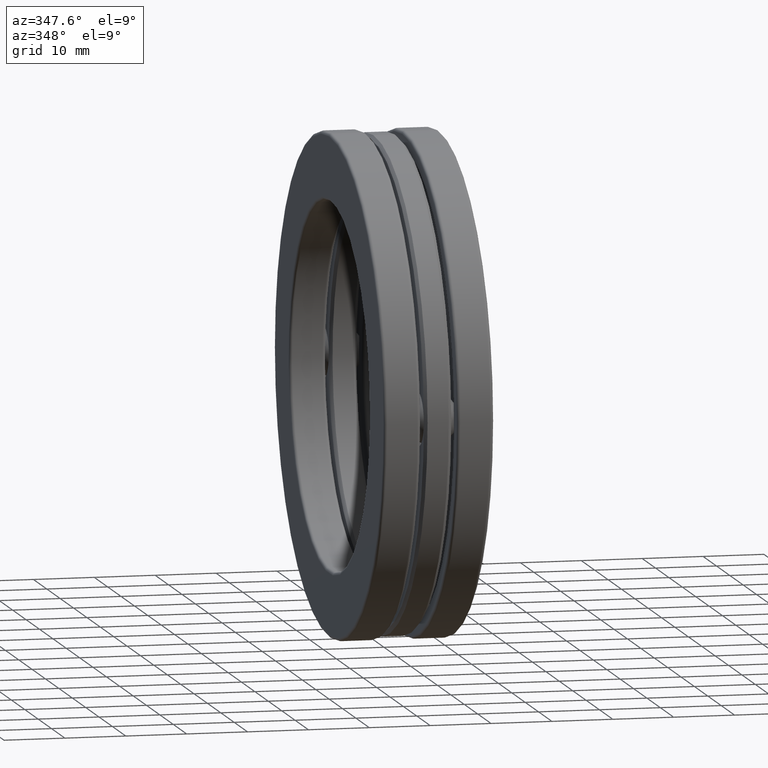
[diagram: clean part render]
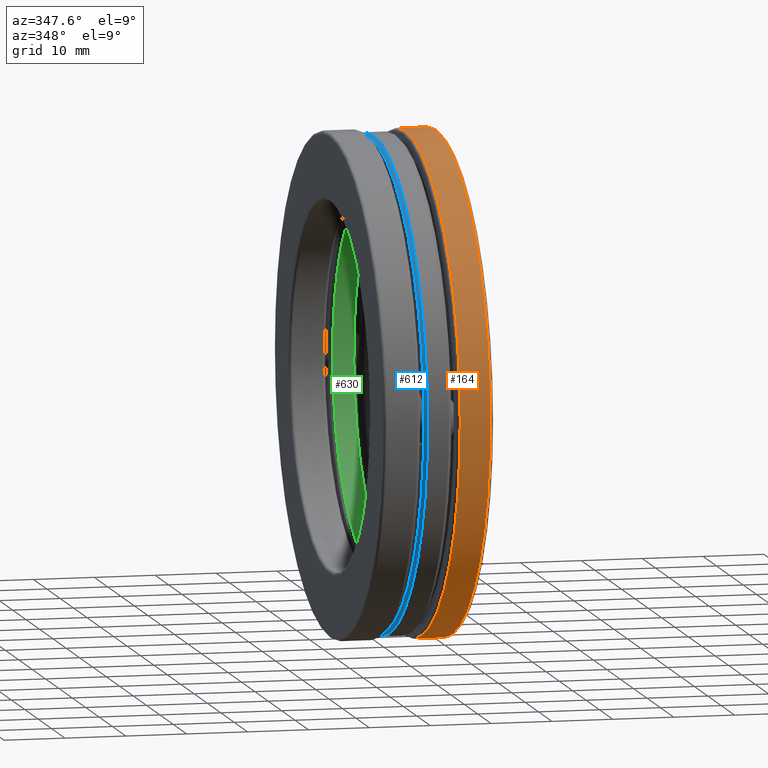
[diagram: same view with three faces highlighted in distinct colors, each labeled with its STEP entity id]
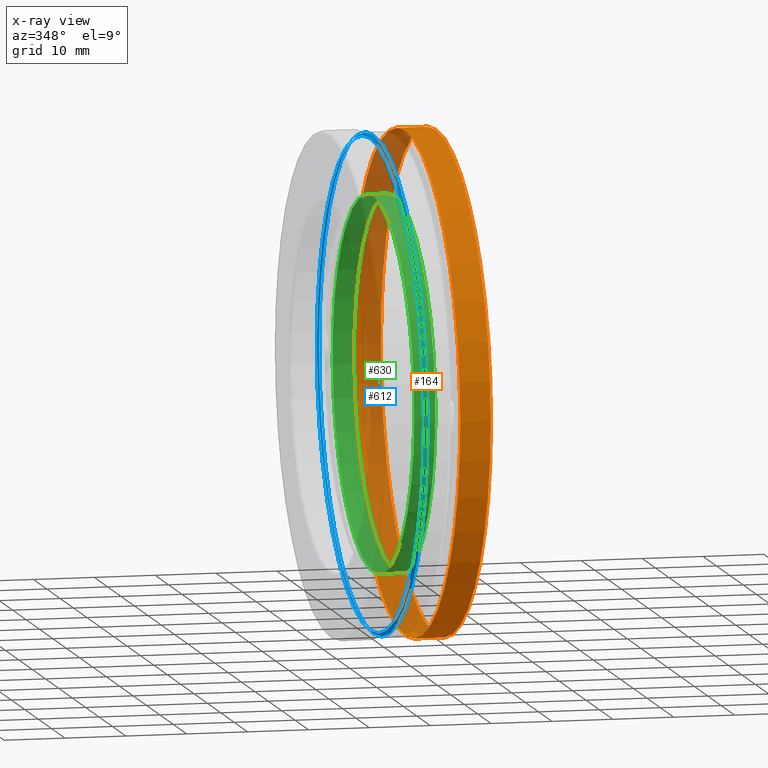
[diagram: x-ray of the same camera — body ghosted, the three highlighted faces saturated]
A machine part, auxiliary view with three faces highlighted in distinct colors.
The next image is the same camera in x-ray (body ghosted, the three faces saturated) — at least one of them is partly hidden behind the body in this view.
Their STEP definitions:

[orange] entity #164 — the highlighted cylindrical surface (bore or boss wall) has radius 40.9956 mm, axis along (-1, -0, -0).
#2 = FACE_OUTER_BOUND ( 'NONE', #351, .T. ) ;
#13 = VERTEX_POINT ( 'NONE', #737 ) ;
#82 = CYLINDRICAL_SURFACE ( 'NONE', #569, 1.614000000000000300 ) ;
#122 = AXIS2_PLACEMENT_3D ( 'NONE', #297, #515, #224 ) ;
#134 = DIRECTION ( 'NONE',  ( -1.000000000000000000, -0.0000000000000000000, -0.0000000000000000000 ) ) ;
#164 = ADVANCED_FACE ( 'NONE', ( #201, #2 ), #82, .T. ) ;
#201 = FACE_OUTER_BOUND ( 'NONE', #932, .T. ) ;
#224 = DIRECTION ( 'NONE',  ( 0.0000000000000000000, 0.0000000000000000000, 1.000000000000000000 ) ) ;
#242 = AXIS2_PLACEMENT_3D ( 'NONE', #602, #305, #396 ) ;
#245 = CIRCLE ( 'NONE', #242, 1.614000000000000300 ) ;
#258 = CIRCLE ( 'NONE', #122, 1.614000000000000300 ) ;
#297 = CARTESIAN_POINT ( 'NONE',  ( 0.3345000000000006300, 0.0000000000000000000, 0.0000000000000000000 ) ) ;
#305 = DIRECTION ( 'NONE',  ( -1.000000000000000000, -0.0000000000000000000, -0.0000000000000000000 ) ) ;
#351 = EDGE_LOOP ( 'NONE', ( #704 ) ) ;
#396 = DIRECTION ( 'NONE',  ( 0.0000000000000000000, 0.0000000000000000000, 1.000000000000000000 ) ) ;
#434 = EDGE_CURVE ( 'NONE', #13, #13, #258, .T. ) ;
#515 = DIRECTION ( 'NONE',  ( -1.000000000000000000, -0.0000000000000000000, -0.0000000000000000000 ) ) ;
#529 = ORIENTED_EDGE ( 'NONE', *, *, #629, .F. ) ;
#569 = AXIS2_PLACEMENT_3D ( 'NONE', #989, #134, #672 ) ;
#602 = CARTESIAN_POINT ( 'NONE',  ( 0.1381690300000004700, 0.0000000000000000000, 0.0000000000000000000 ) ) ;
#629 = EDGE_CURVE ( 'NONE', #831, #831, #245, .T. ) ;
#672 = DIRECTION ( 'NONE',  ( 0.0000000000000000000, 0.0000000000000000000, 1.000000000000000000 ) ) ;
#704 = ORIENTED_EDGE ( 'NONE', *, *, #434, .T. ) ;
#731 = CARTESIAN_POINT ( 'NONE',  ( 0.1381690300000004700, 0.0000000000000000000, 1.614000000000000300 ) ) ;
#737 = CARTESIAN_POINT ( 'NONE',  ( 0.3345000000000006300, 0.0000000000000000000, 1.614000000000000300 ) ) ;
#831 = VERTEX_POINT ( 'NONE', #731 ) ;
#932 = EDGE_LOOP ( 'NONE', ( #529 ) ) ;
#989 = CARTESIAN_POINT ( 'NONE',  ( 0.0000000000000000000, 0.0000000000000000000, 0.0000000000000000000 ) ) ;

[blue] entity #612 — the highlighted conical surface has half-angle 45 deg.
#9 = EDGE_LOOP ( 'NONE', ( #331, #694, #857, #805 ) ) ;
#14 = FACE_OUTER_BOUND ( 'NONE', #476, .T. ) ;
#30 = CARTESIAN_POINT ( 'NONE',  ( -0.08862499999999999500, 0.0000000000000000000, 0.0000000000000000000 ) ) ;
#49 = CIRCLE ( 'NONE', #149, 1.593999999999999600 ) ;
#50 = VERTEX_POINT ( 'NONE', #395 ) ;
#55 = AXIS2_PLACEMENT_3D ( 'NONE', #313, #535, #613 ) ;
#89 = AXIS2_PLACEMENT_3D ( 'NONE', #120, #452, #772 ) ;
#95 = VERTEX_POINT ( 'NONE', #801 ) ;
#120 = CARTESIAN_POINT ( 'NONE',  ( -0.08862499999999999500, 0.0000000000000000000, 0.0000000000000000000 ) ) ;
#121 = DIRECTION ( 'NONE',  ( 0.0000000000000000000, 0.0000000000000000000, 1.000000000000000000 ) ) ;
#149 = AXIS2_PLACEMENT_3D ( 'NONE', #289, #910, #999 ) ;
#159 = DIRECTION ( 'NONE',  ( 0.0000000000000000000, 0.0000000000000000000, 1.000000000000000000 ) ) ;
#174 = EDGE_CURVE ( 'NONE', #50, #95, #764, .T. ) ;
#227 = DIRECTION ( 'NONE',  ( -1.000000000000000000, -0.0000000000000000000, -0.0000000000000000000 ) ) ;
#237 = VERTEX_POINT ( 'NONE', #369 ) ;
#256 = CARTESIAN_POINT ( 'NONE',  ( -0.08862499999999999500, 1.573999999999999600, 0.0000000000000000000 ) ) ;
#289 = CARTESIAN_POINT ( 'NONE',  ( -0.06862500000000001900, 0.0000000000000000000, 0.0000000000000000000 ) ) ;
#290 = EDGE_CURVE ( 'NONE', #966, #589, #846, .T. ) ;
#294 = EDGE_CURVE ( 'NONE', #589, #50, #909, .T. ) ;
#313 = CARTESIAN_POINT ( 'NONE',  ( -0.08862499999999999500, 0.0000000000000000000, 0.0000000000000000000 ) ) ;
#326 = CIRCLE ( 'NONE', #342, 1.573999999999999600 ) ;
#331 = ORIENTED_EDGE ( 'NONE', *, *, #290, .F. ) ;
#342 = AXIS2_PLACEMENT_3D ( 'NONE', #402, #227, #854 ) ;
#368 = FACE_BOUND ( 'NONE', #9, .T. ) ;
#369 = CARTESIAN_POINT ( 'NONE',  ( -0.06862500000000001900, 0.0000000000000000000, 1.593999999999999600 ) ) ;
#386 = DIRECTION ( 'NONE',  ( -1.000000000000000000, -0.0000000000000000000, -0.0000000000000000000 ) ) ;
#395 = CARTESIAN_POINT ( 'NONE',  ( -0.08862499999999996800, -1.574000000000000300, 3.807592714452448000E-019 ) ) ;
#402 = CARTESIAN_POINT ( 'NONE',  ( -0.08862499999999999500, 0.0000000000000000000, 0.0000000000000000000 ) ) ;
#417 = EDGE_CURVE ( 'NONE', #237, #237, #49, .T. ) ;
#452 = DIRECTION ( 'NONE',  ( -1.000000000000000000, -0.0000000000000000000, -0.0000000000000000000 ) ) ;
#476 = EDGE_LOOP ( 'NONE', ( #706 ) ) ;
#535 = DIRECTION ( 'NONE',  ( 1.000000000000000000, 0.0000000000000000000, 0.0000000000000000000 ) ) ;
#547 = EDGE_CURVE ( 'NONE', #95, #966, #326, .T. ) ;
#589 = VERTEX_POINT ( 'NONE', #780 ) ;
#605 = AXIS2_PLACEMENT_3D ( 'NONE', #988, #386, #159 ) ;
#612 = ADVANCED_FACE ( 'NONE', ( #14, #368 ), #1020, .T. ) ;
#613 = DIRECTION ( 'NONE',  ( 0.0000000000000000000, 0.0000000000000000000, -1.000000000000000000 ) ) ;
#694 = ORIENTED_EDGE ( 'NONE', *, *, #547, .F. ) ;
#700 = AXIS2_PLACEMENT_3D ( 'NONE', #30, #744, #121 ) ;
#706 = ORIENTED_EDGE ( 'NONE', *, *, #417, .T. ) ;
#744 = DIRECTION ( 'NONE',  ( -1.000000000000000000, -0.0000000000000000000, -0.0000000000000000000 ) ) ;
#764 = CIRCLE ( 'NONE', #605, 1.573999999999999600 ) ;
#772 = DIRECTION ( 'NONE',  ( 0.0000000000000000000, 0.0000000000000000000, 1.000000000000000000 ) ) ;
#780 = CARTESIAN_POINT ( 'NONE',  ( -0.08862499999999999500, -5.495591627339089700E-015, -1.573999999999999600 ) ) ;
#801 = CARTESIAN_POINT ( 'NONE',  ( -0.08862499999999996800, 1.648690070339581000E-014, 1.574000000000000300 ) ) ;
#805 = ORIENTED_EDGE ( 'NONE', *, *, #294, .F. ) ;
#846 = CIRCLE ( 'NONE', #89, 1.573999999999999600 ) ;
#854 = DIRECTION ( 'NONE',  ( 0.0000000000000000000, 0.0000000000000000000, 1.000000000000000000 ) ) ;
#857 = ORIENTED_EDGE ( 'NONE', *, *, #174, .F. ) ;
#909 = CIRCLE ( 'NONE', #700, 1.573999999999999600 ) ;
#910 = DIRECTION ( 'NONE',  ( -1.000000000000000000, -0.0000000000000000000, -0.0000000000000000000 ) ) ;
#966 = VERTEX_POINT ( 'NONE', #256 ) ;
#988 = CARTESIAN_POINT ( 'NONE',  ( -0.08862499999999999500, 0.0000000000000000000, 0.0000000000000000000 ) ) ;
#999 = DIRECTION ( 'NONE',  ( 0.0000000000000000000, 0.0000000000000000000, 1.000000000000000000 ) ) ;
#1020 = CONICAL_SURFACE ( 'NONE', #55, 1.573999999999999600, 0.7853981633974502800 ) ;

[green] entity #630 — the highlighted cylindrical surface (bore or boss wall) has radius 30.5054 mm, axis along (-1, -0, -0).
#92 = AXIS2_PLACEMENT_3D ( 'NONE', #894, #490, #116 ) ;
#114 = EDGE_CURVE ( 'NONE', #487, #487, #370, .T. ) ;
#116 = DIRECTION ( 'NONE',  ( 0.0000000000000000000, 0.0000000000000000000, 1.000000000000000000 ) ) ;
#202 = AXIS2_PLACEMENT_3D ( 'NONE', #371, #839, #283 ) ;
#277 = CARTESIAN_POINT ( 'NONE',  ( 0.06862500000000004700, 0.0000000000000000000, 1.201000000000000100 ) ) ;
#283 = DIRECTION ( 'NONE',  ( 0.0000000000000000000, 0.0000000000000000000, 1.000000000000000000 ) ) ;
#300 = CARTESIAN_POINT ( 'NONE',  ( 0.0000000000000000000, 0.0000000000000000000, 0.0000000000000000000 ) ) ;
#364 = VERTEX_POINT ( 'NONE', #277 ) ;
#370 = CIRCLE ( 'NONE', #92, 1.201000000000000100 ) ;
#371 = CARTESIAN_POINT ( 'NONE',  ( 0.06862500000000004700, 0.0000000000000000000, 0.0000000000000000000 ) ) ;
#443 = EDGE_LOOP ( 'NONE', ( #580 ) ) ;
#454 = EDGE_CURVE ( 'NONE', #364, #364, #740, .T. ) ;
#484 = FACE_OUTER_BOUND ( 'NONE', #799, .T. ) ;
#487 = VERTEX_POINT ( 'NONE', #574 ) ;
#490 = DIRECTION ( 'NONE',  ( -1.000000000000000000, -0.0000000000000000000, -0.0000000000000000000 ) ) ;
#508 = CYLINDRICAL_SURFACE ( 'NONE', #798, 1.201000000000000100 ) ;
#574 = CARTESIAN_POINT ( 'NONE',  ( -0.06862499999999996400, 0.0000000000000000000, 1.201000000000000100 ) ) ;
#580 = ORIENTED_EDGE ( 'NONE', *, *, #454, .F. ) ;
#618 = DIRECTION ( 'NONE',  ( -1.000000000000000000, -0.0000000000000000000, -0.0000000000000000000 ) ) ;
#630 = ADVANCED_FACE ( 'NONE', ( #754, #484 ), #508, .F. ) ;
#702 = ORIENTED_EDGE ( 'NONE', *, *, #114, .T. ) ;
#740 = CIRCLE ( 'NONE', #202, 1.201000000000000100 ) ;
#754 = FACE_OUTER_BOUND ( 'NONE', #443, .T. ) ;
#798 = AXIS2_PLACEMENT_3D ( 'NONE', #300, #618, #844 ) ;
#799 = EDGE_LOOP ( 'NONE', ( #702 ) ) ;
#839 = DIRECTION ( 'NONE',  ( -1.000000000000000000, -0.0000000000000000000, -0.0000000000000000000 ) ) ;
#844 = DIRECTION ( 'NONE',  ( 0.0000000000000000000, 0.0000000000000000000, 1.000000000000000000 ) ) ;
#894 = CARTESIAN_POINT ( 'NONE',  ( -0.06862499999999996400, 0.0000000000000000000, 0.0000000000000000000 ) ) ;